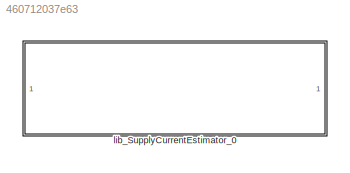
MODEL slx_460712037e63
KIND library
CONFIG AbsTol = auto
CONFIG EnableMultiTasking = off
CONFIG FixedStep = auto
CONFIG MaxStep = auto
CONFIG MinStep = auto
CONFIG RelTol = 1e-3
CONFIG SampleTimeConstraint = Unconstrained
CONFIG SolverName = VariableStepAuto
CONFIG StartTime = 0.0
CONFIG StopTime = 10.0
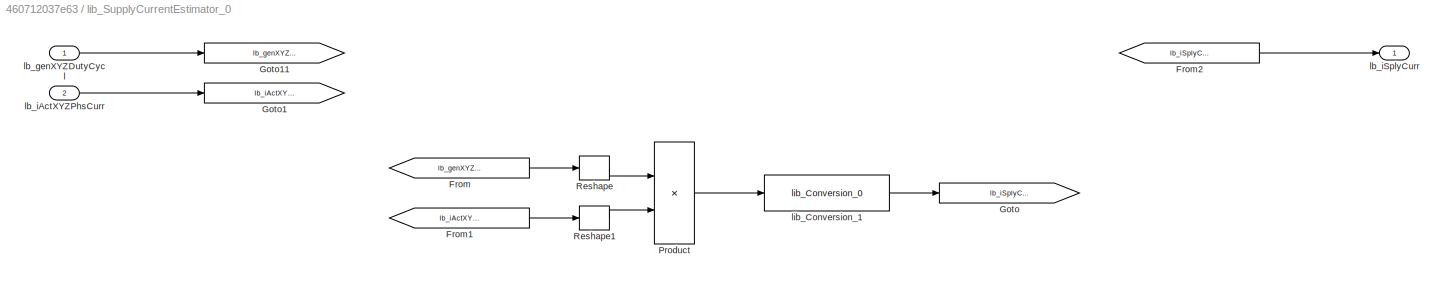
BLOCK [SubSystem] lib_SupplyCurrentEstimator_0
BLOCK [From] lib_SupplyCurrentEstimator_0/From
  GotoTag = lb_genXYZDutyCycl
BLOCK [From] lib_SupplyCurrentEstimator_0/From1
  GotoTag = lb_iActXYZPhsCurr
BLOCK [From] lib_SupplyCurrentEstimator_0/From2
  GotoTag = lb_iSplyCurr
BLOCK [Goto] lib_SupplyCurrentEstimator_0/Goto
  GotoTag = lb_iSplyCurr
BLOCK [Goto] lib_SupplyCurrentEstimator_0/Goto1
  GotoTag = lb_iActXYZPhsCurr
BLOCK [Goto] lib_SupplyCurrentEstimator_0/Goto11
  GotoTag = lb_genXYZDutyCycl
BLOCK [Product] lib_SupplyCurrentEstimator_0/Product
  Multiplication = Matrix(*)
  OutDataTypeStr = Inherit: Inherit via back propagation
BLOCK [Reshape] lib_SupplyCurrentEstimator_0/Reshape
  OutputDimensionality = Row vector (2-D)
BLOCK [Reshape] lib_SupplyCurrentEstimator_0/Reshape1
  OutputDimensionality = Column vector (2-D)
BLOCK [Inport] lib_SupplyCurrentEstimator_0/lb_genXYZDutyCycl
BLOCK [Inport] lib_SupplyCurrentEstimator_0/lb_iActXYZPhsCurr
  Port = 2
BLOCK [Outport] lib_SupplyCurrentEstimator_0/lb_iSplyCurr
BLOCK [Reference] lib_SupplyCurrentEstimator_0/lib_Conversion_1  REF=lib_conversion/lib_Conversion_0  (lib defined in slx_7f5c0202220d)
  SourceBlock = lib_conversion/lib_Conversion_0
LINE lib_SupplyCurrentEstimator_0/From1:1 -> lib_SupplyCurrentEstimator_0/Reshape1:1
LINE lib_SupplyCurrentEstimator_0/From2:1 -> lib_SupplyCurrentEstimator_0/lb_iSplyCurr:1
LINE lib_SupplyCurrentEstimator_0/From:1 -> lib_SupplyCurrentEstimator_0/Reshape:1
LINE lib_SupplyCurrentEstimator_0/Product:1 -> lib_SupplyCurrentEstimator_0/lib_Conversion_1:1
LINE lib_SupplyCurrentEstimator_0/Reshape1:1 -> lib_SupplyCurrentEstimator_0/Product:2
LINE lib_SupplyCurrentEstimator_0/Reshape:1 -> lib_SupplyCurrentEstimator_0/Product:1
LINE lib_SupplyCurrentEstimator_0/lb_genXYZDutyCycl:1 -> lib_SupplyCurrentEstimator_0/Goto11:1
LINE lib_SupplyCurrentEstimator_0/lb_iActXYZPhsCurr:1 -> lib_SupplyCurrentEstimator_0/Goto1:1
LINE lib_SupplyCurrentEstimator_0/lib_Conversion_1:1 -> lib_SupplyCurrentEstimator_0/Goto:1
